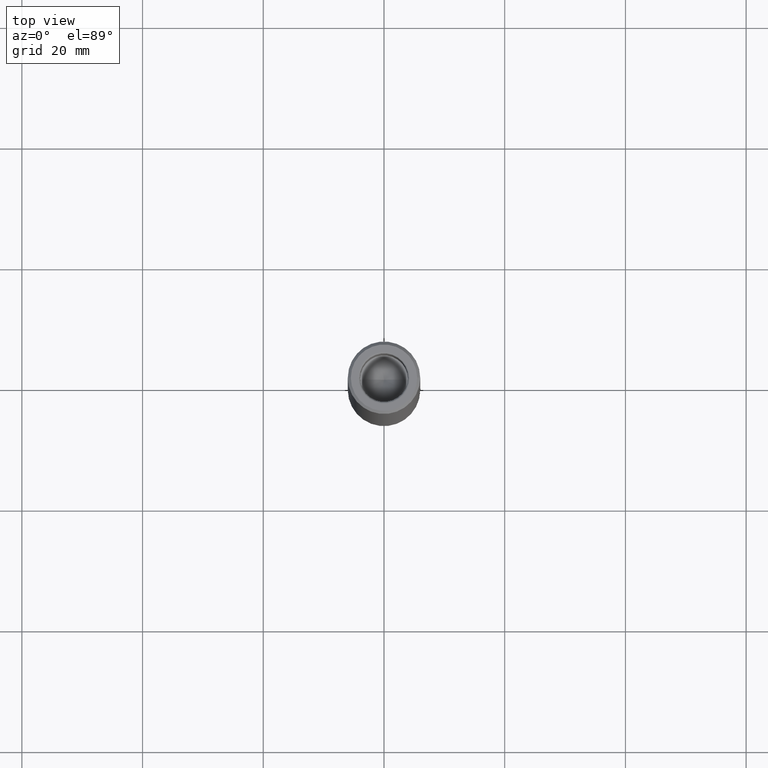
[diagram: clean part render]
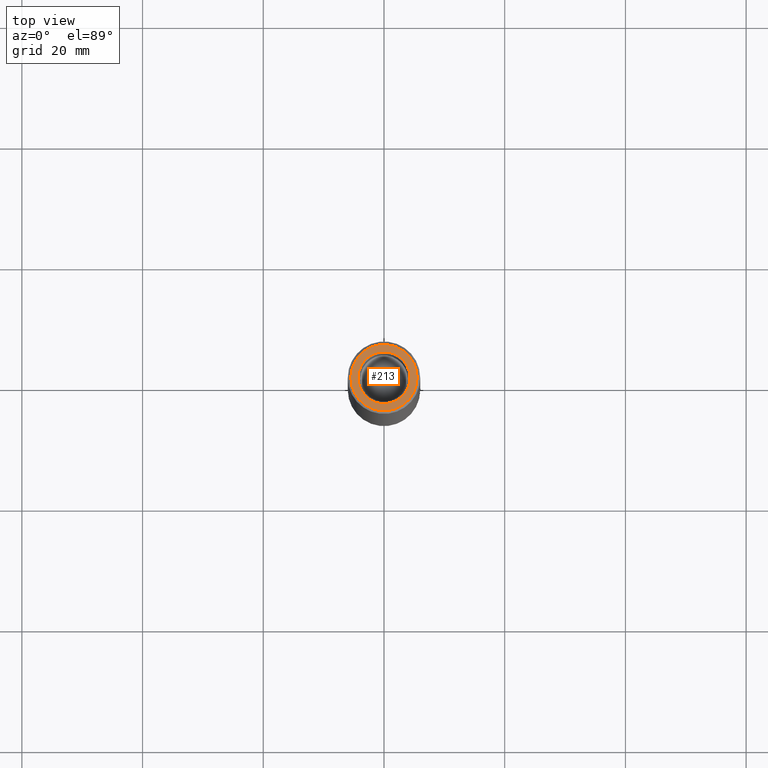
[diagram: same view with one face highlighted and labeled with its STEP entity id]
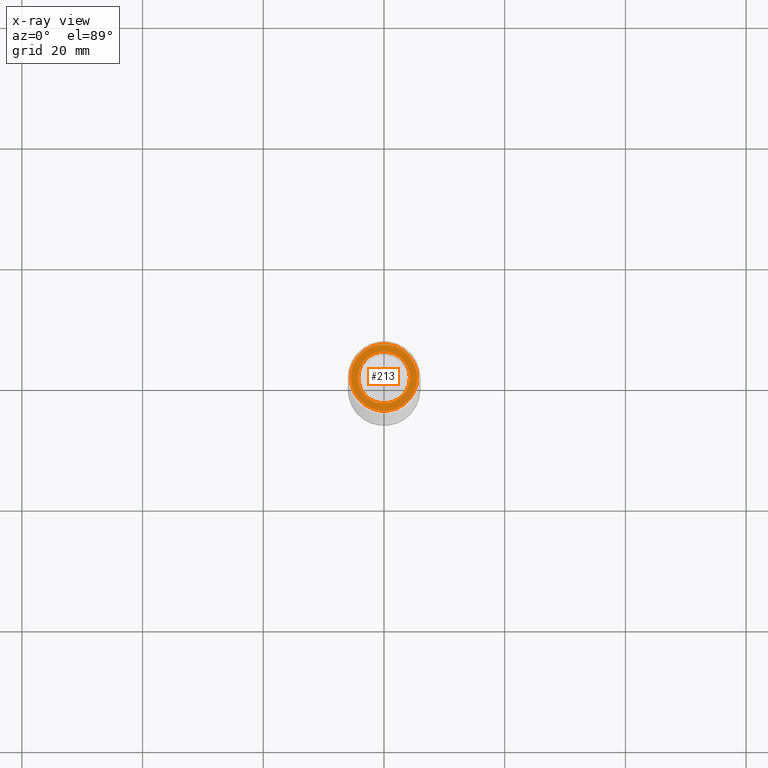
[diagram: x-ray of the same camera — body ghosted, the highlighted face saturated]
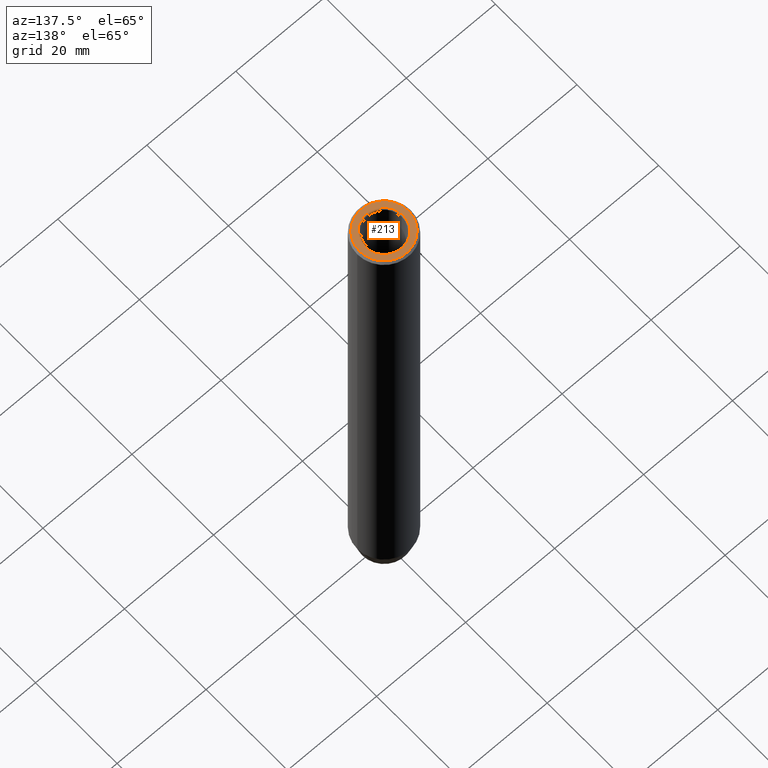
[diagram: same view with one face highlighted and labeled with its STEP entity id]
A machine part, top view. The second image highlights one B-rep face of the part: STEP entity #213.
The next image is the same camera in x-ray: the body ghosted, the highlighted face saturated — about 0% of this face is hidden behind the body in this view.
A second angle (auxiliary view) of the same face is appended — the face is thin or edge-on in the first view.
In plain terms, the highlighted planar face has unit normal (0, -0, 1).
Its self-contained STEP definition (entity closure, byte-faithful):
#19 = DIRECTION ( 'NONE',  ( -0.000000000000000000, -0.000000000000000000, 1.000000000000000000 ) ) ;
#24 = EDGE_CURVE ( 'NONE', #317, #363, #432, .T. ) ;
#50 = DIRECTION ( 'NONE',  ( 1.000000000000000000, 0.000000000000000000, 0.000000000000000000 ) ) ;
#61 = EDGE_LOOP ( 'NONE', ( #544, #108 ) ) ;
#73 = AXIS2_PLACEMENT_3D ( 'NONE', #588, #92, #50 ) ;
#92 = DIRECTION ( 'NONE',  ( 0.000000000000000000, 0.000000000000000000, -1.000000000000000000 ) ) ;
#102 = CARTESIAN_POINT ( 'NONE',  ( 0.000000000000000000, 0.000000000000000000, 0.000000000000000000 ) ) ;
#108 = ORIENTED_EDGE ( 'NONE', *, *, #24, .T. ) ;
#110 = DIRECTION ( 'NONE',  ( 1.000000000000000000, 0.000000000000000000, 0.000000000000000000 ) ) ;
#129 = CARTESIAN_POINT ( 'NONE',  ( 0.000000000000000000, 0.000000000000000000, 0.000000000000000000 ) ) ;
#154 = CARTESIAN_POINT ( 'NONE',  ( 5.500000000000031974, 7.041719095097299615E-16, 0.000000000000000000 ) ) ;
#172 = AXIS2_PLACEMENT_3D ( 'NONE', #129, #479, #435 ) ;
#179 = DIRECTION ( 'NONE',  ( 0.000000000000000000, -0.000000000000000000, 1.000000000000000000 ) ) ;
#180 = EDGE_CURVE ( 'NONE', #363, #317, #450, .T. ) ;
#183 = CIRCLE ( 'NONE', #73, 4.299999999999996270 ) ;
#213 = ADVANCED_FACE ( 'NONE', ( #579, #620 ), #476, .T. ) ;
#259 = EDGE_LOOP ( 'NONE', ( #343, #305 ) ) ;
#305 = ORIENTED_EDGE ( 'NONE', *, *, #318, .T. ) ;
#317 = VERTEX_POINT ( 'NONE', #154 ) ;
#318 = EDGE_CURVE ( 'NONE', #404, #503, #378, .T. ) ;
#343 = ORIENTED_EDGE ( 'NONE', *, *, #355, .T. ) ;
#351 = CARTESIAN_POINT ( 'NONE',  ( -5.500000000000031974, 0.000000000000000000, 0.000000000000000000 ) ) ;
#355 = EDGE_CURVE ( 'NONE', #503, #404, #183, .T. ) ;
#361 = CARTESIAN_POINT ( 'NONE',  ( 0.000000000000000000, 0.000000000000000000, 0.000000000000000000 ) ) ;
#362 = CARTESIAN_POINT ( 'NONE',  ( -4.299999999999996270, 5.265981236333614526E-16, 0.000000000000000000 ) ) ;
#363 = VERTEX_POINT ( 'NONE', #351 ) ;
#378 = CIRCLE ( 'NONE', #389, 4.299999999999996270 ) ;
#389 = AXIS2_PLACEMENT_3D ( 'NONE', #102, #597, #543 ) ;
#404 = VERTEX_POINT ( 'NONE', #362 ) ;
#419 = AXIS2_PLACEMENT_3D ( 'NONE', #361, #19, #110 ) ;
#432 = CIRCLE ( 'NONE', #419, 5.500000000000031974 ) ;
#435 = DIRECTION ( 'NONE',  ( 1.000000000000000000, 0.000000000000000000, 0.000000000000000000 ) ) ;
#450 = CIRCLE ( 'NONE', #172, 5.500000000000031974 ) ;
#476 = PLANE ( 'NONE',  #498 ) ;
#479 = DIRECTION ( 'NONE',  ( -0.000000000000000000, -0.000000000000000000, 1.000000000000000000 ) ) ;
#498 = AXIS2_PLACEMENT_3D ( 'NONE', #624, #179, #585 ) ;
#503 = VERTEX_POINT ( 'NONE', #577 ) ;
#543 = DIRECTION ( 'NONE',  ( 1.000000000000000000, 0.000000000000000000, 0.000000000000000000 ) ) ;
#544 = ORIENTED_EDGE ( 'NONE', *, *, #180, .T. ) ;
#577 = CARTESIAN_POINT ( 'NONE',  ( 4.299999999999996270, 0.000000000000000000, 0.000000000000000000 ) ) ;
#579 = FACE_BOUND ( 'NONE', #259, .T. ) ;
#585 = DIRECTION ( 'NONE',  ( 1.000000000000000000, 0.000000000000000000, 0.000000000000000000 ) ) ;
#588 = CARTESIAN_POINT ( 'NONE',  ( 0.000000000000000000, 0.000000000000000000, 0.000000000000000000 ) ) ;
#597 = DIRECTION ( 'NONE',  ( 0.000000000000000000, 0.000000000000000000, -1.000000000000000000 ) ) ;
#620 = FACE_OUTER_BOUND ( 'NONE', #61, .T. ) ;
#624 = CARTESIAN_POINT ( 'NONE',  ( 0.000000000000000000, 0.000000000000000000, 0.000000000000000000 ) ) ;